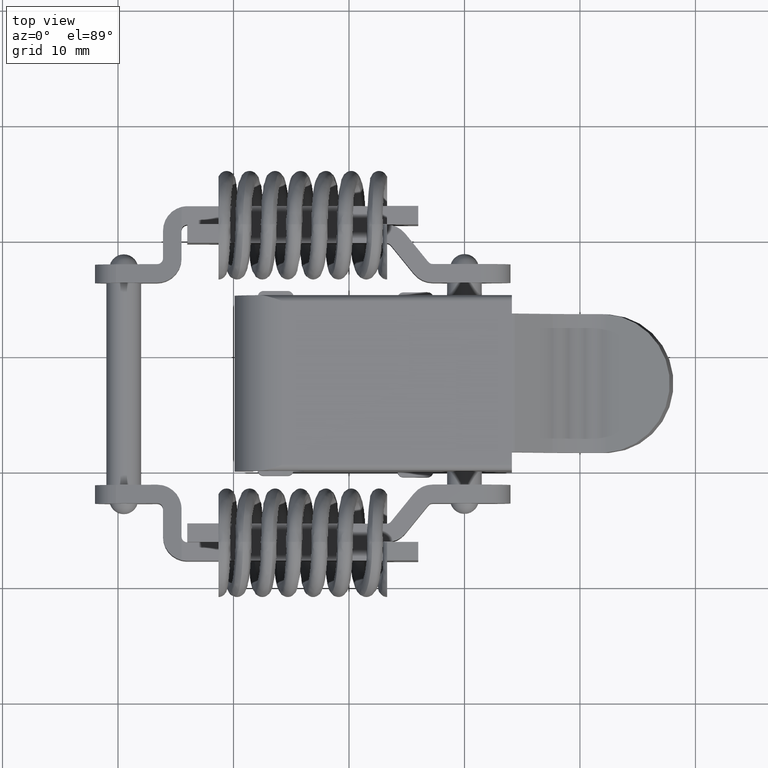
[diagram: clean part render]
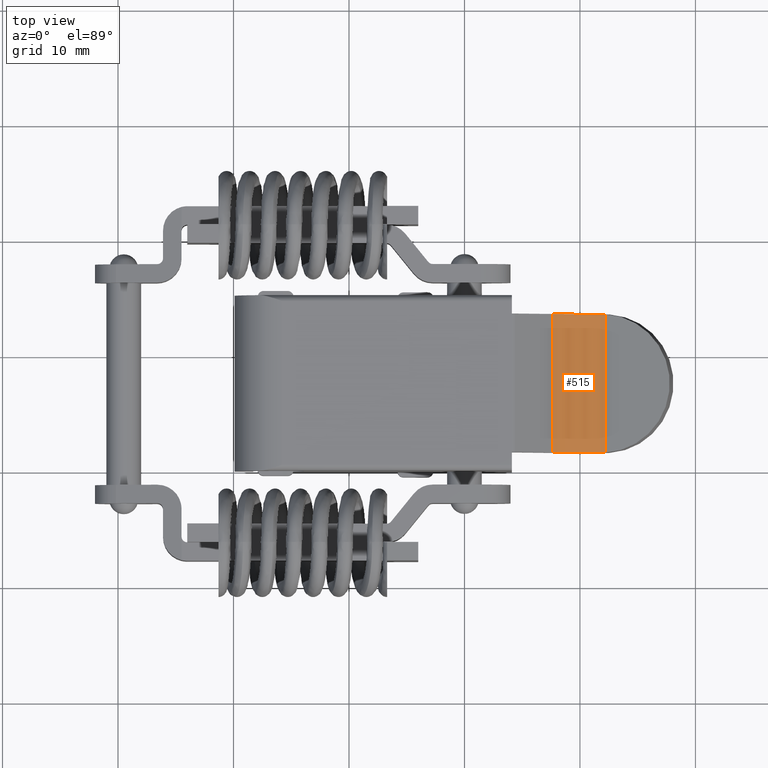
[diagram: same view with one face highlighted and labeled with its STEP entity id]
A machine part, top view. The second image highlights one B-rep face of the part: STEP entity #515.
In plain terms, the highlighted cylindrical surface (partial cylindrical patch) has radius 6 mm, axis along (0, -1, 0).
Its self-contained STEP definition (entity closure, byte-faithful):
#515=ADVANCED_FACE('',(#3400),#3399,.F.);
#3399=CYLINDRICAL_SURFACE('',#9021,6.00000000000E+00);
#3400=FACE_OUTER_BOUND('',#9022,.T.);
#9018=CARTESIAN_POINT('',(1.10000000000E+01,7.60000020266E+00,8.70000000000E+00));
#9019=DIRECTION('',(0.00000000000E+00,-1.00000000000E+00,-0.00000000000E+00));
#9020=DIRECTION('',(-5.56694613289E-01,-0.00000000000E+00,-8.30717224773E-01));
#9021=AXIS2_PLACEMENT_3D('',#9018,#9019,#9020);
#9022=EDGE_LOOP('',(#10592,#10593,#10594,#10595,#10596,#10597));
#10592=ORIENTED_EDGE('',*,*,#11519,.T.);
#10593=ORIENTED_EDGE('',*,*,#11530,.T.);
#10594=ORIENTED_EDGE('',*,*,#11531,.F.);
#10595=ORIENTED_EDGE('',*,*,#11526,.F.);
#10596=ORIENTED_EDGE('',*,*,#11532,.T.);
#10597=ORIENTED_EDGE('',*,*,#11533,.F.);
#11519=EDGE_CURVE('',#16135,#16136,#16137,.T.);
#11526=EDGE_CURVE('',#16178,#16164,#16185,.T.);
#11530=EDGE_CURVE('',#16136,#16210,#16211,.T.);
#11531=EDGE_CURVE('',#16164,#16210,#16217,.T.);
#11532=EDGE_CURVE('',#16178,#16223,#16224,.T.);
#11533=EDGE_CURVE('',#16135,#16223,#16230,.T.);
#16135=VERTEX_POINT('',#20418);
#16136=VERTEX_POINT('',#20419);
#16137=LINE('',#20420,#20421);
#16164=VERTEX_POINT('',#20437);
#16178=VERTEX_POINT('',#20445);
#16185=LINE('',#20449,#20450);
#16210=VERTEX_POINT('',#20464);
#16211=(BOUNDED_CURVE() B_SPLINE_CURVE(3,(#20465,#20466,#20467,#20468),.UNSPECIFIED.,.F.,.F.) B_SPLINE_CURVE_WITH_KNOTS((4,4),(0.00000000000E+00,3.46941625103E-04),.UNSPECIFIED.) CURVE() GEOMETRIC_REPRESENTATION_ITEM() RATIONAL_B_SPLINE_CURVE((1.00000000000E+00,1.00000000000E+00,1.00000000000E+00,1.00000000000E+00)) REPRESENTATION_ITEM('') );
#16217=CIRCLE('',#20472,6.00000000000E+00);
#16223=VERTEX_POINT('',#20473);
#16224=CIRCLE('',#20477,6.00000000000E+00);
#16230=(BOUNDED_CURVE() B_SPLINE_CURVE(3,(#20478,#20479,#20480,#20481),.UNSPECIFIED.,.F.,.F.) B_SPLINE_CURVE_WITH_KNOTS((4,4),(0.00000000000E+00,3.46941625103E-04),.UNSPECIFIED.) CURVE() GEOMETRIC_REPRESENTATION_ITEM() RATIONAL_B_SPLINE_CURVE((1.00000000000E+00,1.00000000000E+00,1.00000000000E+00,1.00000000000E+00)) REPRESENTATION_ITEM('') );
#20418=CARTESIAN_POINT('',(1.22418292127E+01,1.61002407033E+00,2.82991821126E+00));
#20419=CARTESIAN_POINT('',(1.22418292127E+01,1.35899759294E+01,2.82991821126E+00));
#20420=CARTESIAN_POINT('',(1.22418292127E+01,1.61002407033E+00,2.82991821126E+00));
#20421=VECTOR('',#20422,1.19799518591E+01);
#20422=DIRECTION('',(0.00000000000E+00,1.00000000000E+00,0.00000000000E+00));
#20437=CARTESIAN_POINT('',(7.65983232027E+00,1.36000000000E+01,3.71569665136E+00));
#20445=CARTESIAN_POINT('',(7.65983232027E+00,1.59999999974E+00,3.71569665136E+00));
#20449=CARTESIAN_POINT('',(7.65983232027E+00,1.59999999974E+00,3.71569665136E+00));
#20450=VECTOR('',#20451,1.20000000003E+01);
#20451=DIRECTION('',(0.00000000000E+00,1.00000000000E+00,0.00000000000E+00));
#20464=CARTESIAN_POINT('',(1.19006090092E+01,1.36000000000E+01,2.76797644875E+00));
#20465=CARTESIAN_POINT('',(1.22418292127E+01,1.35899759294E+01,2.82991821126E+00));
#20466=CARTESIAN_POINT('',(1.21287807641E+01,1.35966636122E+01,2.80600255370E+00));
#20467=CARTESIAN_POINT('',(1.20150415532E+01,1.36000000000E+01,2.78534977493E+00));
#20468=CARTESIAN_POINT('',(1.19006090092E+01,1.36000000000E+01,2.76797644875E+00));
#20469=CARTESIAN_POINT('',(1.10000000000E+01,1.36000000000E+01,8.70000000000E+00));
#20470=DIRECTION('',(0.00000000000E+00,-1.00000000000E+00,-0.00000000000E+00));
#20471=DIRECTION('',(5.56694613289E-01,-0.00000000000E+00,8.30717224774E-01));
#20472=AXIS2_PLACEMENT_3D('',#20469,#20470,#20471);
#20473=CARTESIAN_POINT('',(1.19006090092E+01,1.59999999974E+00,2.76797644875E+00));
#20474=CARTESIAN_POINT('',(1.10000000000E+01,1.59999999974E+00,8.70000000000E+00));
#20475=DIRECTION('',(0.00000000000E+00,-1.00000000000E+00,-0.00000000000E+00));
#20476=DIRECTION('',(5.56694613289E-01,-0.00000000000E+00,8.30717224774E-01));
#20477=AXIS2_PLACEMENT_3D('',#20474,#20475,#20476);
#20478=CARTESIAN_POINT('',(1.22418292127E+01,1.61002407033E+00,2.82991821126E+00));
#20479=CARTESIAN_POINT('',(1.21287807641E+01,1.60333638758E+00,2.80600255370E+00));
#20480=CARTESIAN_POINT('',(1.20150415532E+01,1.59999999974E+00,2.78534977493E+00));
#20481=CARTESIAN_POINT('',(1.19006090092E+01,1.59999999974E+00,2.76797644875E+00));